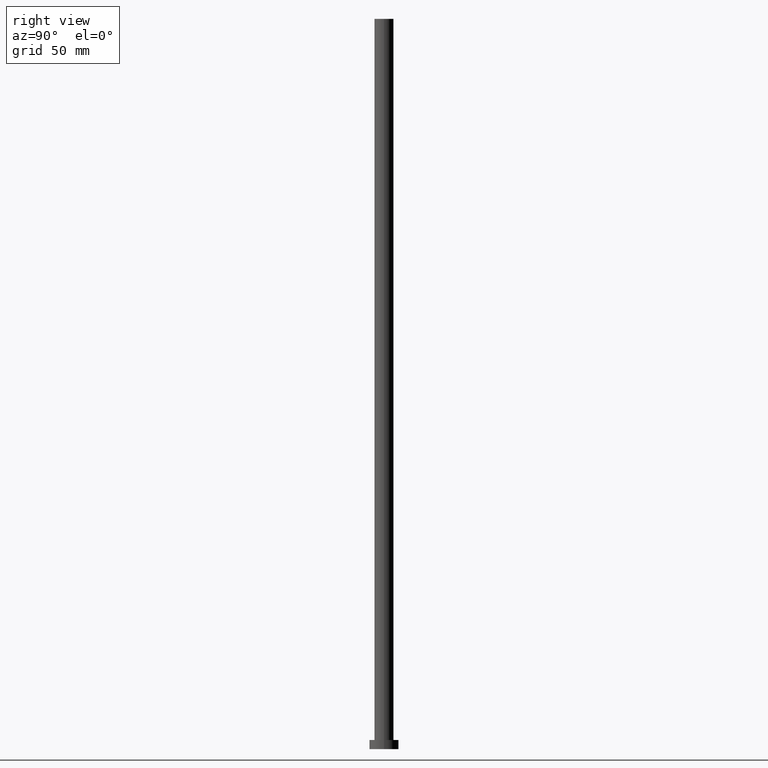
[diagram: clean part render]
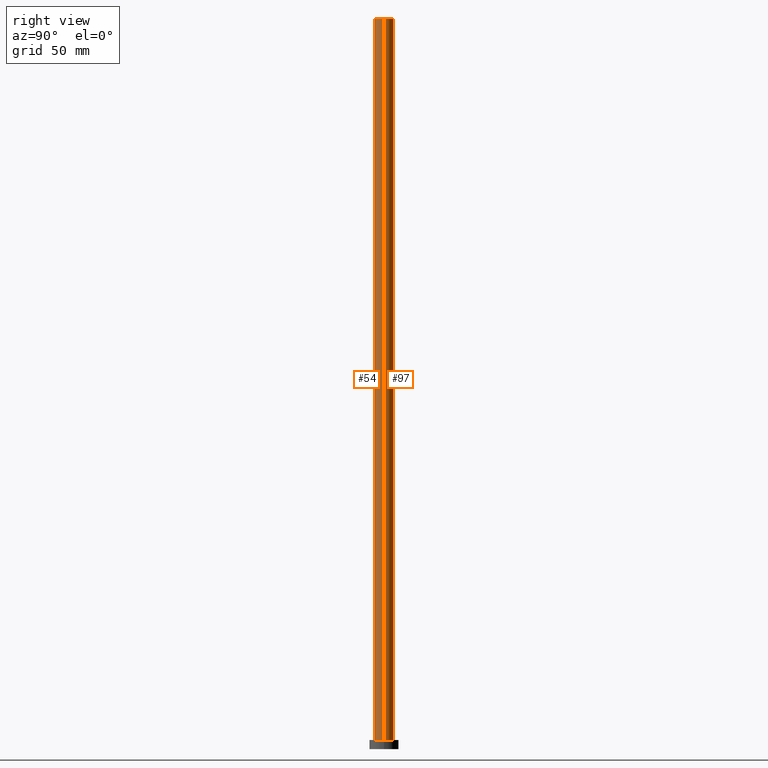
[diagram: same view with one multi-face feature highlighted, each face labeled with its STEP entity id]
A machine part, right view. The highlighted faces form ONE feature: a constant-radius fillet chain: 2 tangent blend faces with common blend radius 5.25 mm. The faces share edges in the B-rep.
Their STEP definitions:
[1] entity #97 (Cylinder):
#1 = CARTESIAN_POINT ( 'NONE',  ( 0.000000000000000000, 0.000000000000000000, 400.0000000000000000 ) ) ;
#3 = DIRECTION ( 'NONE',  ( 1.000000000000000000, 0.000000000000000000, 0.000000000000000000 ) ) ;
#8 = VECTOR ( 'NONE', #73, 1000.000000000000000 ) ;
#12 = EDGE_CURVE ( 'NONE', #128, #154, #139, .T. ) ;
#18 = DIRECTION ( 'NONE',  ( -0.000000000000000000, -0.000000000000000000, -1.000000000000000000 ) ) ;
#27 = AXIS2_PLACEMENT_3D ( 'NONE', #167, #227, #121 ) ;
#38 = CARTESIAN_POINT ( 'NONE',  ( 5.250000000000000888, 6.429395695523604153E-16, 400.0000000000000000 ) ) ;
#39 = CARTESIAN_POINT ( 'NONE',  ( 5.250000000000000888, 6.429395695523604153E-16, 400.0000000000000000 ) ) ;
#42 = CARTESIAN_POINT ( 'NONE',  ( 5.250000000000000888, 6.429395695523604153E-16, 5.000000000000000000 ) ) ;
#55 = CARTESIAN_POINT ( 'NONE',  ( -5.250000000000000888, 0.000000000000000000, 5.000000000000000000 ) ) ;
#56 = CARTESIAN_POINT ( 'NONE',  ( -5.250000000000000888, 0.000000000000000000, 400.0000000000000000 ) ) ;
#67 = EDGE_LOOP ( 'NONE', ( #94, #86, #171, #253 ) ) ;
#73 = DIRECTION ( 'NONE',  ( -0.000000000000000000, -0.000000000000000000, -1.000000000000000000 ) ) ;
#75 = EDGE_CURVE ( 'NONE', #112, #246, #195, .T. ) ;
#76 = AXIS2_PLACEMENT_3D ( 'NONE', #1, #201, #3 ) ;
#86 = ORIENTED_EDGE ( 'NONE', *, *, #12, .T. ) ;
#94 = ORIENTED_EDGE ( 'NONE', *, *, #119, .F. ) ;
#97 = ADVANCED_FACE ( 'NONE', ( #160 ), #163, .T. ) ;
#102 = DIRECTION ( 'NONE',  ( -1.000000000000000000, 0.000000000000000000, 0.000000000000000000 ) ) ;
#112 = VERTEX_POINT ( 'NONE', #56 ) ;
#119 = EDGE_CURVE ( 'NONE', #128, #112, #193, .T. ) ;
#121 = DIRECTION ( 'NONE',  ( 1.000000000000000000, 0.000000000000000000, 0.000000000000000000 ) ) ;
#128 = VERTEX_POINT ( 'NONE', #39 ) ;
#138 = VECTOR ( 'NONE', #218, 1000.000000000000000 ) ;
#139 = LINE ( 'NONE', #38, #138 ) ;
#154 = VERTEX_POINT ( 'NONE', #42 ) ;
#160 = FACE_OUTER_BOUND ( 'NONE', #67, .T. ) ;
#162 = AXIS2_PLACEMENT_3D ( 'NONE', #235, #18, #102 ) ;
#163 = CYLINDRICAL_SURFACE ( 'NONE', #162, 5.250000000000000888 ) ;
#164 = CIRCLE ( 'NONE', #27, 5.250000000000000888 ) ;
#166 = EDGE_CURVE ( 'NONE', #154, #246, #164, .T. ) ;
#167 = CARTESIAN_POINT ( 'NONE',  ( 0.000000000000000000, 0.000000000000000000, 5.000000000000000000 ) ) ;
#171 = ORIENTED_EDGE ( 'NONE', *, *, #166, .T. ) ;
#174 = CARTESIAN_POINT ( 'NONE',  ( -5.250000000000000888, 0.000000000000000000, 400.0000000000000000 ) ) ;
#193 = CIRCLE ( 'NONE', #76, 5.250000000000000888 ) ;
#195 = LINE ( 'NONE', #174, #8 ) ;
#201 = DIRECTION ( 'NONE',  ( 0.000000000000000000, 0.000000000000000000, 1.000000000000000000 ) ) ;
#218 = DIRECTION ( 'NONE',  ( -0.000000000000000000, -0.000000000000000000, -1.000000000000000000 ) ) ;
#227 = DIRECTION ( 'NONE',  ( 0.000000000000000000, 0.000000000000000000, 1.000000000000000000 ) ) ;
#235 = CARTESIAN_POINT ( 'NONE',  ( 0.000000000000000000, 0.000000000000000000, 400.0000000000000000 ) ) ;
#246 = VERTEX_POINT ( 'NONE', #55 ) ;
#253 = ORIENTED_EDGE ( 'NONE', *, *, #75, .F. ) ;
[2] entity #54 (Cylinder):
#8 = VECTOR ( 'NONE', #73, 1000.000000000000000 ) ;
#12 = EDGE_CURVE ( 'NONE', #128, #154, #139, .T. ) ;
#16 = CARTESIAN_POINT ( 'NONE',  ( 0.000000000000000000, 0.000000000000000000, 400.0000000000000000 ) ) ;
#24 = AXIS2_PLACEMENT_3D ( 'NONE', #16, #96, #217 ) ;
#38 = CARTESIAN_POINT ( 'NONE',  ( 5.250000000000000888, 6.429395695523604153E-16, 400.0000000000000000 ) ) ;
#39 = CARTESIAN_POINT ( 'NONE',  ( 5.250000000000000888, 6.429395695523604153E-16, 400.0000000000000000 ) ) ;
#42 = CARTESIAN_POINT ( 'NONE',  ( 5.250000000000000888, 6.429395695523604153E-16, 5.000000000000000000 ) ) ;
#54 = ADVANCED_FACE ( 'NONE', ( #199 ), #117, .T. ) ;
#55 = CARTESIAN_POINT ( 'NONE',  ( -5.250000000000000888, 0.000000000000000000, 5.000000000000000000 ) ) ;
#56 = CARTESIAN_POINT ( 'NONE',  ( -5.250000000000000888, 0.000000000000000000, 400.0000000000000000 ) ) ;
#59 = CARTESIAN_POINT ( 'NONE',  ( 0.000000000000000000, 0.000000000000000000, 400.0000000000000000 ) ) ;
#73 = DIRECTION ( 'NONE',  ( -0.000000000000000000, -0.000000000000000000, -1.000000000000000000 ) ) ;
#75 = EDGE_CURVE ( 'NONE', #112, #246, #195, .T. ) ;
#77 = ORIENTED_EDGE ( 'NONE', *, *, #75, .T. ) ;
#96 = DIRECTION ( 'NONE',  ( -0.000000000000000000, -0.000000000000000000, -1.000000000000000000 ) ) ;
#112 = VERTEX_POINT ( 'NONE', #56 ) ;
#117 = CYLINDRICAL_SURFACE ( 'NONE', #24, 5.250000000000000888 ) ;
#120 = CARTESIAN_POINT ( 'NONE',  ( 0.000000000000000000, 0.000000000000000000, 5.000000000000000000 ) ) ;
#128 = VERTEX_POINT ( 'NONE', #39 ) ;
#132 = CIRCLE ( 'NONE', #182, 5.250000000000000888 ) ;
#138 = VECTOR ( 'NONE', #218, 1000.000000000000000 ) ;
#139 = LINE ( 'NONE', #38, #138 ) ;
#146 = DIRECTION ( 'NONE',  ( 0.000000000000000000, 0.000000000000000000, 1.000000000000000000 ) ) ;
#147 = AXIS2_PLACEMENT_3D ( 'NONE', #120, #226, #243 ) ;
#151 = EDGE_CURVE ( 'NONE', #246, #154, #181, .T. ) ;
#154 = VERTEX_POINT ( 'NONE', #42 ) ;
#157 = ORIENTED_EDGE ( 'NONE', *, *, #12, .F. ) ;
#174 = CARTESIAN_POINT ( 'NONE',  ( -5.250000000000000888, 0.000000000000000000, 400.0000000000000000 ) ) ;
#181 = CIRCLE ( 'NONE', #147, 5.250000000000000888 ) ;
#182 = AXIS2_PLACEMENT_3D ( 'NONE', #59, #146, #203 ) ;
#186 = EDGE_LOOP ( 'NONE', ( #157, #190, #77, #188 ) ) ;
#188 = ORIENTED_EDGE ( 'NONE', *, *, #151, .T. ) ;
#190 = ORIENTED_EDGE ( 'NONE', *, *, #211, .F. ) ;
#195 = LINE ( 'NONE', #174, #8 ) ;
#199 = FACE_OUTER_BOUND ( 'NONE', #186, .T. ) ;
#203 = DIRECTION ( 'NONE',  ( 1.000000000000000000, 0.000000000000000000, 0.000000000000000000 ) ) ;
#211 = EDGE_CURVE ( 'NONE', #112, #128, #132, .T. ) ;
#217 = DIRECTION ( 'NONE',  ( -1.000000000000000000, 0.000000000000000000, 0.000000000000000000 ) ) ;
#218 = DIRECTION ( 'NONE',  ( -0.000000000000000000, -0.000000000000000000, -1.000000000000000000 ) ) ;
#226 = DIRECTION ( 'NONE',  ( 0.000000000000000000, 0.000000000000000000, 1.000000000000000000 ) ) ;
#243 = DIRECTION ( 'NONE',  ( 1.000000000000000000, 0.000000000000000000, 0.000000000000000000 ) ) ;
#246 = VERTEX_POINT ( 'NONE', #55 ) ;